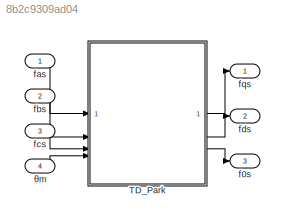
MODEL slx_8b2c9309ad04
KIND model
CONFIG AbsTol = auto
CONFIG EnableMultiTasking = off
CONFIG FixedStep = auto
CONFIG MaxStep = auto
CONFIG MinStep = auto
CONFIG RelTol = 1e-3
CONFIG SampleTimeConstraint = Unconstrained
CONFIG SolverName = VariableStepAuto
CONFIG StartTime = 0.0
CONFIG StopTime = 10.0
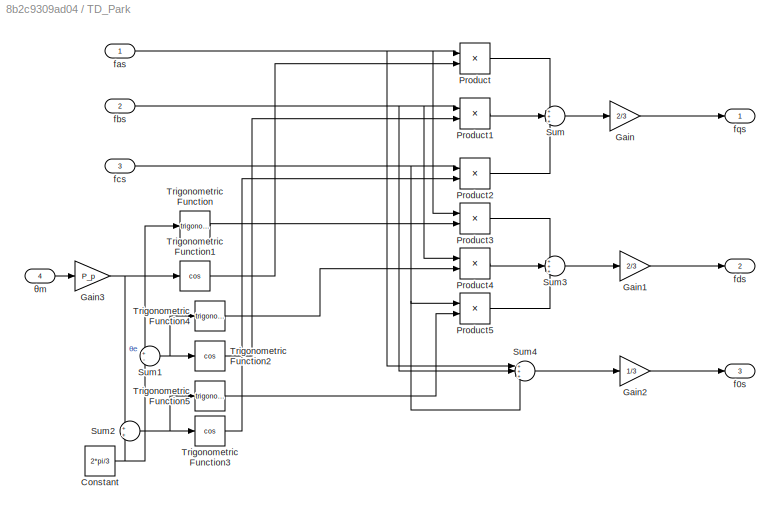
BLOCK [SubSystem] TD_Park
BLOCK [Constant] TD_Park/Constant
  Value = 2*pi/3
BLOCK [Gain] TD_Park/Gain
  Gain = 2/3
BLOCK [Gain] TD_Park/Gain1
  Gain = 2/3
BLOCK [Gain] TD_Park/Gain2
  Gain = 1/3
BLOCK [Gain] TD_Park/Gain3
  Gain = P_p
BLOCK [Product] TD_Park/Product
BLOCK [Product] TD_Park/Product1
BLOCK [Product] TD_Park/Product2
BLOCK [Product] TD_Park/Product3
BLOCK [Product] TD_Park/Product4
BLOCK [Product] TD_Park/Product5
BLOCK [Sum] TD_Park/Sum
  Inputs = +++
BLOCK [Sum] TD_Park/Sum1
  Inputs = +-
BLOCK [Sum] TD_Park/Sum2
BLOCK [Sum] TD_Park/Sum3
  Inputs = +++
BLOCK [Sum] TD_Park/Sum4
  Inputs = +++
BLOCK [Trigonometry] TD_Park/Trigonometric Function
BLOCK [Trigonometry] TD_Park/Trigonometric Function1
  Operator = cos
BLOCK [Trigonometry] TD_Park/Trigonometric Function2
  Operator = cos
BLOCK [Trigonometry] TD_Park/Trigonometric Function3
  Operator = cos
BLOCK [Trigonometry] TD_Park/Trigonometric Function4
BLOCK [Trigonometry] TD_Park/Trigonometric Function5
BLOCK [Outport] TD_Park/f0s
  Port = 3
BLOCK [Inport] TD_Park/fas
BLOCK [Inport] TD_Park/fbs
  Port = 2
BLOCK [Inport] TD_Park/fcs
  Port = 3
BLOCK [Outport] TD_Park/fds
  Port = 2
BLOCK [Outport] TD_Park/fqs
BLOCK [Inport] TD_Park/θm
  Port = 4
BLOCK [Outport] f0s
  Port = 3
BLOCK [Inport] fas
BLOCK [Inport] fbs
  Port = 2
BLOCK [Inport] fcs
  Port = 3
BLOCK [Outport] fds
  Port = 2
BLOCK [Outport] fqs
BLOCK [Inport] θm
  Port = 4
NET TD_Park/Constant:1 -> TD_Park/Sum1:2, TD_Park/Sum2:2
LINE TD_Park/Gain1:1 -> TD_Park/fds:1
LINE TD_Park/Gain2:1 -> TD_Park/f0s:1
NET TD_Park/Gain3:1 -> TD_Park/Sum1:1, TD_Park/Sum2:1, TD_Park/Trigonometric Function1:1, TD_Park/Trigonometric Function:1
LINE TD_Park/Gain:1 -> TD_Park/fqs:1
LINE TD_Park/Product1:1 -> TD_Park/Sum:2
LINE TD_Park/Product2:1 -> TD_Park/Sum:3
LINE TD_Park/Product3:1 -> TD_Park/Sum3:1
LINE TD_Park/Product4:1 -> TD_Park/Sum3:2
LINE TD_Park/Product5:1 -> TD_Park/Sum3:3
LINE TD_Park/Product:1 -> TD_Park/Sum:1
NET TD_Park/Sum1:1 -> TD_Park/Trigonometric Function2:1, TD_Park/Trigonometric Function4:1
NET TD_Park/Sum2:1 -> TD_Park/Trigonometric Function3:1, TD_Park/Trigonometric Function5:1
LINE TD_Park/Sum3:1 -> TD_Park/Gain1:1
LINE TD_Park/Sum4:1 -> TD_Park/Gain2:1
LINE TD_Park/Sum:1 -> TD_Park/Gain:1
LINE TD_Park/Trigonometric Function1:1 -> TD_Park/Product:2
LINE TD_Park/Trigonometric Function2:1 -> TD_Park/Product1:2
LINE TD_Park/Trigonometric Function3:1 -> TD_Park/Product2:2
LINE TD_Park/Trigonometric Function4:1 -> TD_Park/Product4:2
LINE TD_Park/Trigonometric Function5:1 -> TD_Park/Product5:2
LINE TD_Park/Trigonometric Function:1 -> TD_Park/Product3:2
NET TD_Park/fas:1 -> TD_Park/Product3:1, TD_Park/Product:1, TD_Park/Sum4:1
NET TD_Park/fbs:1 -> TD_Park/Product1:1, TD_Park/Product4:1, TD_Park/Sum4:2
NET TD_Park/fcs:1 -> TD_Park/Product2:1, TD_Park/Product5:1, TD_Park/Sum4:3
LINE TD_Park/θm:1 -> TD_Park/Gain3:1
LINE TD_Park:1 -> fqs:1
LINE TD_Park:2 -> fds:1
LINE TD_Park:3 -> f0s:1
LINE fas:1 -> TD_Park:1
LINE fbs:1 -> TD_Park:2
LINE fcs:1 -> TD_Park:3
LINE θm:1 -> TD_Park:4
note: NET lines group one-source signal fan-out (src -> all destinations, sorted); 1:1 wires keep LINE
